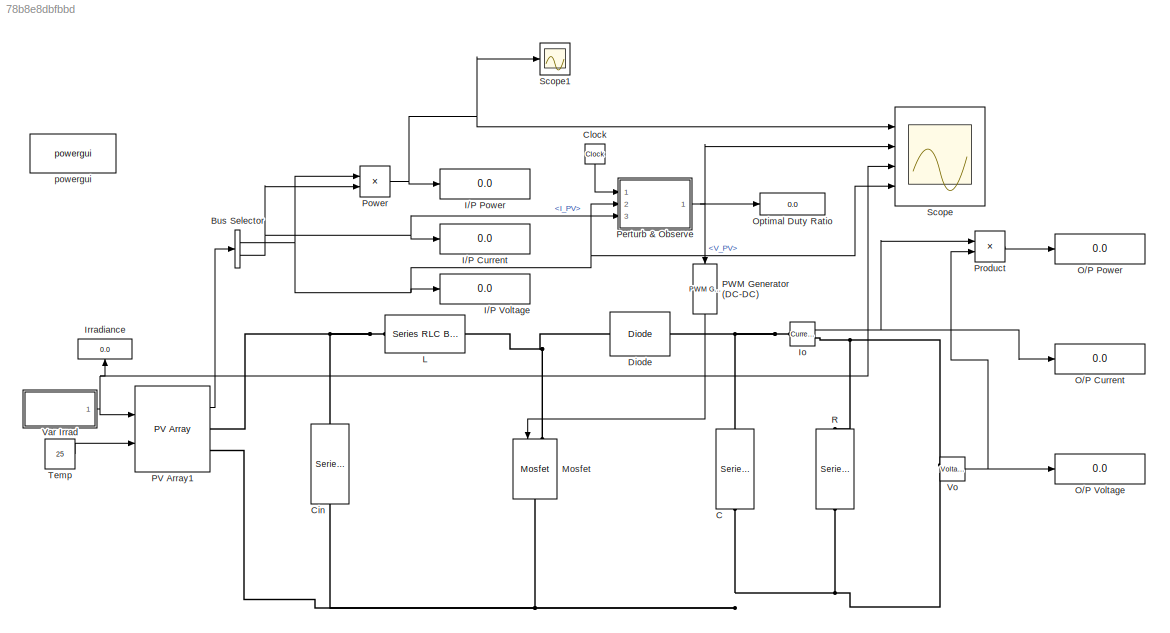
MODEL slx_78b8e8dbfbbd
KIND model
CONFIG AbsTol = auto
CONFIG EnableMultiTasking = off
CONFIG FixedStep = auto
CONFIG MaxStep = auto
CONFIG MinStep = auto
CONFIG RelTol = 1e-3
CONFIG SampleTimeConstraint = Unconstrained
CONFIG SolverName = VariableStepAuto
CONFIG StartTime = 0.0
CONFIG StopTime = 2
BLOCK [BusSelector] Bus Selector
  OutputSignals = V_PV,I_PV
  Ports = [1, 2]
BLOCK [Reference] C  REF=spsSeriesRLCBranchLib/Series RLC Branch
  NameLocation = left
  Ports = [0, 0, 0, 0, 0, 1, 1]
  SourceBlock = spsSeriesRLCBranchLib/Series RLC Branch
  SourceProductBaseCode = PS
  SourceType = Series RLC Branch
BLOCK [Reference] Cin  REF=spsSeriesRLCBranchLib/Series RLC Branch
  NameLocation = left
  Ports = [0, 0, 0, 0, 0, 1, 1]
  SourceBlock = spsSeriesRLCBranchLib/Series RLC Branch
  SourceProductBaseCode = PS
  SourceType = Series RLC Branch
BLOCK [Clock] Clock
  Decimation = 2
  DisplayTime = on
  NameLocation = left
BLOCK [Reference] Diode  REF=spsDiodeLib/Diode
  Ports = [0, 0, 0, 0, 0, 1, 1]
  SourceBlock = spsDiodeLib/Diode
  SourceProductBaseCode = PS
  SourceType = Diode
BLOCK [Display] I//P Current
  Decimation = 1
  NameLocation = right
  Ports = [1]
BLOCK [Display] I//P Power
  Decimation = 1
  NameLocation = right
  Ports = [1]
BLOCK [Display] I//P Voltage
  Decimation = 1
  NameLocation = right
  Ports = [1]
BLOCK [Reference] Io  REF=spsCurrentMeasurementLib/Current Measurement
  Ports = [0, 1, 0, 0, 0, 1, 1]
  SourceBlock = spsCurrentMeasurementLib/Current Measurement
  SourceProductBaseCode = PS
  SourceType = Current Measurement
  UserDataPersistent = on
BLOCK [Display] Irradiance
  Decimation = 1
  NameLocation = top
  Ports = [1]
BLOCK [Reference] L  REF=spsSeriesRLCBranchLib/Series RLC Branch
  Ports = [0, 0, 0, 0, 0, 1, 1]
  SourceBlock = spsSeriesRLCBranchLib/Series RLC Branch
  SourceProductBaseCode = PS
  SourceType = Series RLC Branch
BLOCK [Reference] Mosfet  REF=spsMosfetLib/Mosfet
  NameLocation = left
  Ports = [1, 0, 0, 0, 0, 1, 1]
  SourceBlock = spsMosfetLib/Mosfet
  SourceProductBaseCode = PS
  SourceType = Mosfet
BLOCK [Display] O//P Current
  Decimation = 1
  NameLocation = right
  Ports = [1]
BLOCK [Display] O//P Power
  Decimation = 1
  NameLocation = right
  Ports = [1]
BLOCK [Display] O//P Voltage
  Decimation = 1
  NameLocation = right
  Ports = [1]
BLOCK [Display] Optimal Duty Ratio
  Decimation = 1
  Ports = [1]
BLOCK [Reference] PV Array1  REF=spsPVArrayLib/PV Array
  Ports = [2, 1, 0, 0, 0, 0, 2]
  SourceBlock = spsPVArrayLib/PV Array
  SourceProductBaseCode = PS
  SourceType = PV array
BLOCK [Reference] PWM Generator (DC-DC)  REF=spsPWMGeneratorDCDCLib/PWM Generator
(DC-DC)
  NameLocation = right
  Ports = [1, 1]
  SourceBlock = spsPWMGeneratorDCDCLib/PWM Generator\n(DC-DC)
  SourceProductBaseCode = PS
  SourceType = PWM Generator (DC-DC)
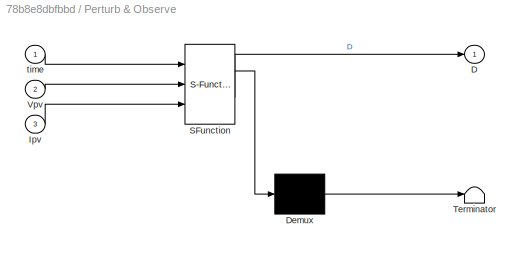
BLOCK [SubSystem] Perturb & Observe
  ErrorFcn = Stateflow.Translate.translate
  NameLocation = top
  PermitHierarchicalResolution = ExplicitOnly
  Ports = [3, 1]
  RequestExecContextInheritance = off
  SFBlockType = MATLAB Function
  TreatAsAtomicUnit = on
BLOCK [Demux] Perturb & Observe/ Demux 
  Outputs = 1
  Ports = [1, 1]
BLOCK [S-Function] Perturb & Observe/ SFunction 
  EnableBusSupport = on
  FunctionName = sf_sfun
  PortCounts = [3 2]
  Ports = [3, 2]
  SFcnIsStateOwnerBlock = off
  SFunctionDeploymentMode = off
  Tag = Stateflow S-Function 2
BLOCK [Terminator] Perturb & Observe/ Terminator 
BLOCK [Outport] Perturb & Observe/D
BLOCK [Inport] Perturb & Observe/Ipv
  Port = 3
BLOCK [Inport] Perturb & Observe/Vpv
  Port = 2
BLOCK [Inport] Perturb & Observe/time
BLOCK [Product] Power
  Ports = [2, 1]
BLOCK [Product] Product
  Ports = [2, 1]
BLOCK [Reference] R  REF=spsSeriesRLCBranchLib/Series RLC Branch
  NameLocation = left
  Ports = [0, 0, 0, 0, 0, 1, 1]
  SourceBlock = spsSeriesRLCBranchLib/Series RLC Branch
  SourceProductBaseCode = PS
  SourceType = Series RLC Branch
BLOCK [Scope] Scope
  Floating = off
  NameLocation = right
  NumInputPorts = 4
  Ports = [4]
  ScopeSpecificationString = Simulink.scopes.TimeScopeBlockCfg('CurrentConfiguration', extmgr.ConfigurationSet(extmgr.Configuration('Core','General UI',true),extmgr.Configuration('Core','Source UI',true),extmgr.Configuration('Sources','WiredSimulink',true),extmgr.Configuration('Visuals','Time Domain',true,'SerializedDisplays',{struct('MinYLimReal','-1.30738','MaxYLimReal','11.76954','YLabelReal','','MinYLimMag','0.00000','Max...<+3577ch>
BLOCK [Scope] Scope1
  Floating = off
  NumInputPorts = 1
  Ports = [1]
  ScopeSpecificationString = Simulink.scopes.TimeScopeBlockCfg('CurrentConfiguration', extmgr.ConfigurationSet(extmgr.Configuration('Core','General UI',true),extmgr.Configuration('Core','Source UI',true),extmgr.Configuration('Sources','WiredSimulink',true,'DataLoggingVariableName','ScopeData1'),extmgr.Configuration('Visuals','Time Domain',true,'SerializedDisplays',{struct('MinYLimReal','-1.25013','MaxYLimReal','11.25424','YLa...<+1368ch>
BLOCK [Constant] Temp
  NameLocation = left
  Value = 25
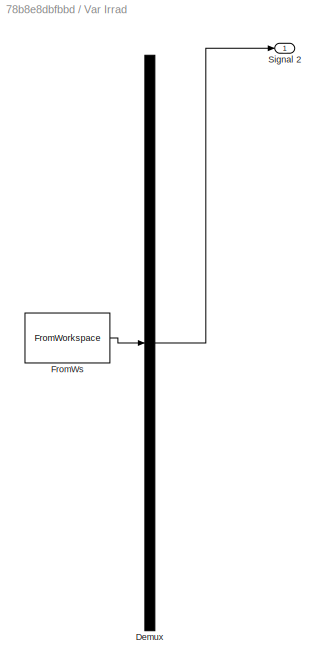
BLOCK [SubSystem] Var Irrad
  ClipboardFcn = sigbuilder_block('clipboard');
  CloseFcn = sigbuilder_block('close');
  ContinueFcn = sigbuilder_block('continue');
  CopyFcn = sigbuilder_block('copy');
  DeleteFcn = sigbuilder_block('delete');
  LoadFcn = sigbuilder_block('load');
  MaskHideContents = on
  ModelCloseFcn = sigbuilder_block('modelClose');
  NameChangeFcn = sigbuilder_block('namechange');
  NameLocation = left
  OpenFcn = sigbuilder_block('open',[381.6 96.6 550.8 400.2 ]);
  PauseFcn = sigbuilder_block('pause');
  Ports = [0, 1]
  PreSaveFcn = sigbuilder_block('preSave');
  RequestExecContextInheritance = off
  StartFcn = sigbuilder_block('start');
  StopFcn = sigbuilder_block('stop');
  Tag = STV Subsys
BLOCK [Demux] Var Irrad/Demux
  DisplayOption = none
  Outputs = 1
  Ports = [1, 1]
  Tag = STV Demux
BLOCK [FromWorkspace] Var Irrad/FromWs
  Tag = STV FromWs
  VariableName = tuvar
BLOCK [Outport] Var Irrad/Signal 2
  Tag = STV Outport
BLOCK [Reference] Vo  REF=spsVoltageMeasurementLib/Voltage Measurement
  Ports = [0, 1, 0, 0, 0, 2]
  SourceBlock = spsVoltageMeasurementLib/Voltage Measurement
  SourceProductBaseCode = PS
  SourceType = Voltage Measurement
  UserDataPersistent = on
BLOCK [Reference] powergui  REF=spspowerguiLib/powergui
  Ports = []
  Priority = 1
  SourceBlock = spspowerguiLib/powergui
  SourceProductBaseCode = PS
  SourceType = PSB option menu block
NET Bus Selector:1 -> I//P Voltage:1, Perturb & Observe:2, Power:1, Scope:4
NET Bus Selector:2 -> I//P Current:1, Perturb & Observe:3, Power:2
LINE Clock:1 -> Perturb & Observe:1
NET Io:1 -> O//P Current:1, Product:1
LINE PV Array1:1 -> Bus Selector:1
LINE PWM Generator (DC-DC):1 -> Mosfet:1
NET Perturb & Observe:1 -> Optimal Duty Ratio:1, PWM Generator (DC-DC):1, Scope:2
NET Power:1 -> I//P Power:1, Scope1:1, Scope:1
LINE Product:1 -> O//P Power:1
LINE Temp:1 -> PV Array1:2
NET Var Irrad:1 -> Irradiance:1, PV Array1:1, Scope:3
NET Vo:1 -> O//P Voltage:1, Product:2
PNET net1: C:LConn1 -- Diode:RConn1 -- Io:LConn1
PNET net2: C:RConn1 -- Cin:RConn1 -- Mosfet:RConn1 -- PV Array1:RConn2 -- R:RConn1 -- Vo:LConn2
PNET net3: Cin:LConn1 -- L:LConn1 -- PV Array1:RConn1
PNET net4: Diode:LConn1 -- L:RConn1 -- Mosfet:LConn1
PNET net5: Io:RConn1 -- R:LConn1 -- Vo:LConn1
note: NET lines group one-source signal fan-out (src -> all destinations, sorted); 1:1 wires keep LINE; PNET lines group multi-terminal physical nets as a canonical sorted terminal list (undirected conserving connections); 2-terminal nets keep the pairwise PLINE form
CHART Perturb & Observe states=1 transitions=1
  STATE_LABEL 'eML_blk_kernel()'
  STATE_LABEL 'SCRIPT:\nfunction D = PO(time, Vpv, Ipv)\n\npersistent Dprev Vprev Pprev prevTime\n\nif isempty(prevTime)\n    prevTime = 0;\n    Dprev = 0.7;\n    Vprev = Vpv;\n    Pprev = Vpv * Ipv;\nend\n\ndT = time - prevTime;\ndelD = 0.01;\ntimeStep = 0.01;\n\nif dT >= timeStep && time >= 0.1\n    Ppv = Vpv * Ipv;\n    dP = Ppv - Pprev;\n    dV = Vpv - Vprev;\n    if dP ~= 0\n        if dP > 0\n            if dV > 0\n             ...<+613ch>'
CHART  states=0 transitions=0
